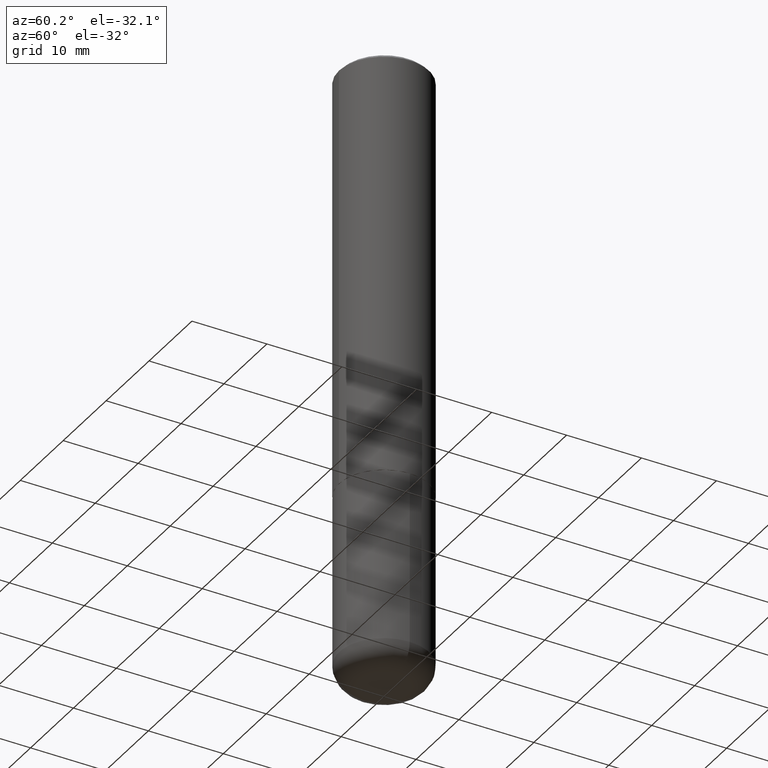
[diagram: clean part render]
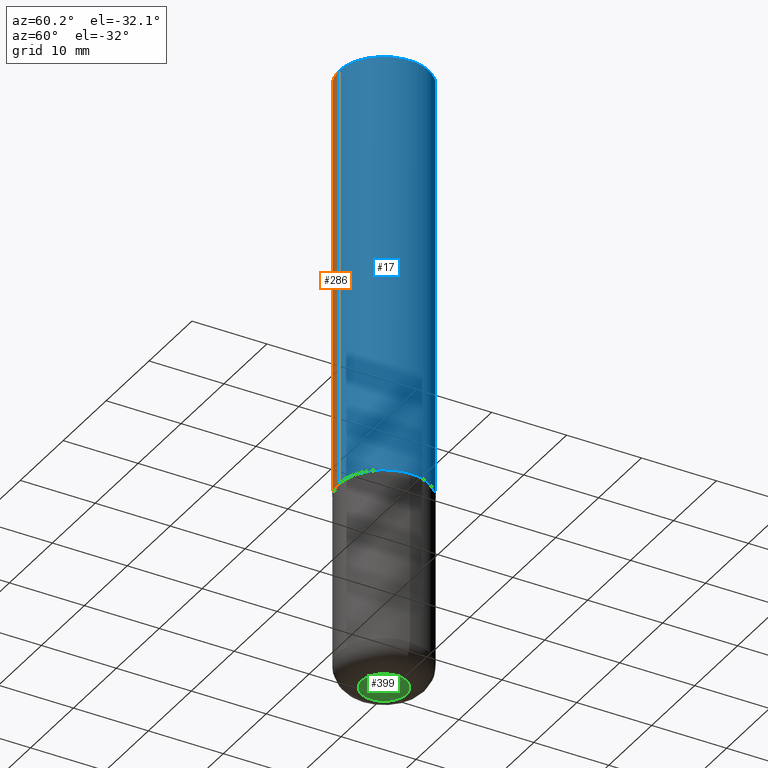
[diagram: same view with three faces highlighted in distinct colors, each labeled with its STEP entity id]
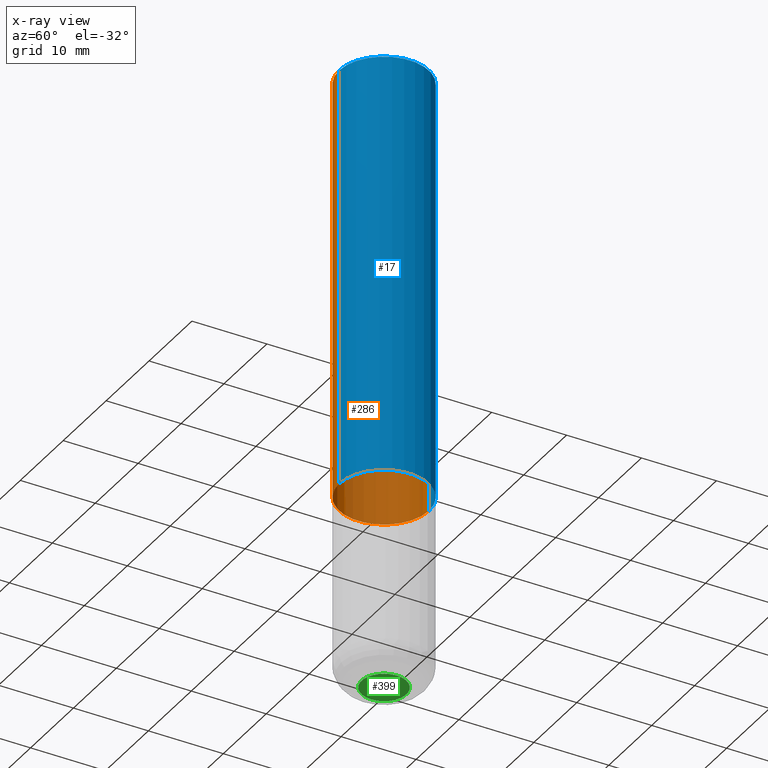
[diagram: x-ray of the same camera — body ghosted, the three highlighted faces saturated]
A machine part, auxiliary view with three faces highlighted in distinct colors.
The next image is the same camera in x-ray (body ghosted, the three faces saturated) — at least one of them is partly hidden behind the body in this view.
Their STEP definitions:

[orange] entity #286 — the highlighted cylindrical surface (partial cylindrical patch) has radius 5.9995 mm, axis along (-0, 0, 1).
#2 = CIRCLE ( 'NONE', #68, 0.2361999999999999933 ) ;
#9 = EDGE_CURVE ( 'NONE', #234, #231, #21, .T. ) ;
#16 = VERTEX_POINT ( 'NONE', #19 ) ;
#18 = CIRCLE ( 'NONE', #249, 0.2362000000000002709 ) ;
#19 = CARTESIAN_POINT ( 'NONE',  ( 1.678301941865385582E-15, 0.2361999999999924160, -2.243100000000000982 ) ) ;
#21 = LINE ( 'NONE', #251, #93 ) ;
#29 = CARTESIAN_POINT ( 'NONE',  ( -1.649375784469443080E-15, -0.2362000000000081257, -2.243099999999999206 ) ) ;
#32 = DIRECTION ( 'NONE',  ( -6.982962677686265922E-15, -1.000000000000000000, 3.494732472144603410E-15 ) ) ;
#68 = AXIS2_PLACEMENT_3D ( 'NONE', #288, #191, #418 ) ;
#74 = CARTESIAN_POINT ( 'NONE',  ( 0.000000000000000000, 0.000000000000000000, 0.000000000000000000 ) ) ;
#76 = EDGE_CURVE ( 'NONE', #16, #234, #18, .T. ) ;
#84 = DIRECTION ( 'NONE',  ( -6.982962677686265922E-15, -1.000000000000000000, 3.469747663417773058E-15 ) ) ;
#93 = VECTOR ( 'NONE', #188, 39.37007874015748143 ) ;
#100 = AXIS2_PLACEMENT_3D ( 'NONE', #74, #109, #32 ) ;
#103 = EDGE_LOOP ( 'NONE', ( #187, #311, #409, #272 ) ) ;
#106 = VECTOR ( 'NONE', #223, 39.37007874015748143 ) ;
#109 = DIRECTION ( 'NONE',  ( -2.443198551934710321E-29, 3.494732472144603410E-15, 1.000000000000000000 ) ) ;
#155 = EDGE_CURVE ( 'NONE', #295, #231, #2, .T. ) ;
#175 = FACE_OUTER_BOUND ( 'NONE', #103, .T. ) ;
#185 = EDGE_CURVE ( 'NONE', #16, #295, #193, .T. ) ;
#187 = ORIENTED_EDGE ( 'NONE', *, *, #185, .F. ) ;
#188 = DIRECTION ( 'NONE',  ( -2.443198551934710321E-29, 3.494732472144603016E-15, 1.000000000000000000 ) ) ;
#191 = DIRECTION ( 'NONE',  ( -2.443198551934710321E-29, 3.494732472144603410E-15, 1.000000000000000000 ) ) ;
#193 = LINE ( 'NONE', #351, #106 ) ;
#223 = DIRECTION ( 'NONE',  ( -2.443198551934710321E-29, 3.494732472144603016E-15, 1.000000000000000000 ) ) ;
#231 = VERTEX_POINT ( 'NONE', #319 ) ;
#233 = CYLINDRICAL_SURFACE ( 'NONE', #100, 0.2362000000000001321 ) ;
#234 = VERTEX_POINT ( 'NONE', #29 ) ;
#246 = CARTESIAN_POINT ( 'NONE',  ( 5.480338671844748839E-29, -7.839034408267561952E-15, -2.243100000000000094 ) ) ;
#249 = AXIS2_PLACEMENT_3D ( 'NONE', #246, #374, #84 ) ;
#251 = CARTESIAN_POINT ( 'NONE',  ( -1.649375784469496920E-15, -0.2362000000000001321, 8.254558099205557624E-16 ) ) ;
#272 = ORIENTED_EDGE ( 'NONE', *, *, #155, .F. ) ;
#286 = ADVANCED_FACE ( 'NONE', ( #175 ), #233, .T. ) ;
#288 = CARTESIAN_POINT ( 'NONE',  ( 4.886397103869442398E-31, -6.989464944289237832E-17, -0.02000000000000009062 ) ) ;
#295 = VERTEX_POINT ( 'NONE', #328 ) ;
#311 = ORIENTED_EDGE ( 'NONE', *, *, #76, .T. ) ;
#319 = CARTESIAN_POINT ( 'NONE',  ( -1.620449627073635079E-15, -0.2362000000000000766, -0.01999999999999926489 ) ) ;
#328 = CARTESIAN_POINT ( 'NONE',  ( 1.649375784469496525E-15, 0.2361999999999999378, -0.02000000000000091288 ) ) ;
#351 = CARTESIAN_POINT ( 'NONE',  ( 1.678301941865357380E-15, 0.2362000000000001321, -8.254558099205557624E-16 ) ) ;
#374 = DIRECTION ( 'NONE',  ( -2.443198551934710321E-29, 3.494732472144603410E-15, 1.000000000000000000 ) ) ;
#409 = ORIENTED_EDGE ( 'NONE', *, *, #9, .T. ) ;
#418 = DIRECTION ( 'NONE',  ( -6.982962677686265922E-15, -1.000000000000000000, 3.487819265831411744E-15 ) ) ;

[blue] entity #17 — the highlighted cylindrical surface (partial cylindrical patch) has radius 5.9995 mm, axis along (-0, 0, 1).
#9 = EDGE_CURVE ( 'NONE', #234, #231, #21, .T. ) ;
#10 = ORIENTED_EDGE ( 'NONE', *, *, #9, .F. ) ;
#16 = VERTEX_POINT ( 'NONE', #19 ) ;
#17 = ADVANCED_FACE ( 'NONE', ( #283 ), #310, .T. ) ;
#19 = CARTESIAN_POINT ( 'NONE',  ( 1.678301941865385582E-15, 0.2361999999999924160, -2.243100000000000982 ) ) ;
#21 = LINE ( 'NONE', #251, #93 ) ;
#22 = CIRCLE ( 'NONE', #356, 0.2361999999999999933 ) ;
#29 = CARTESIAN_POINT ( 'NONE',  ( -1.649375784469443080E-15, -0.2362000000000081257, -2.243099999999999206 ) ) ;
#54 = EDGE_CURVE ( 'NONE', #231, #295, #22, .T. ) ;
#80 = DIRECTION ( 'NONE',  ( -2.443198551934710321E-29, 3.494732472144603410E-15, 1.000000000000000000 ) ) ;
#93 = VECTOR ( 'NONE', #188, 39.37007874015748143 ) ;
#105 = ORIENTED_EDGE ( 'NONE', *, *, #54, .F. ) ;
#106 = VECTOR ( 'NONE', #223, 39.37007874015748143 ) ;
#107 = AXIS2_PLACEMENT_3D ( 'NONE', #202, #360, #389 ) ;
#122 = AXIS2_PLACEMENT_3D ( 'NONE', #153, #80, #377 ) ;
#153 = CARTESIAN_POINT ( 'NONE',  ( 0.000000000000000000, 0.000000000000000000, 0.000000000000000000 ) ) ;
#185 = EDGE_CURVE ( 'NONE', #16, #295, #193, .T. ) ;
#188 = DIRECTION ( 'NONE',  ( -2.443198551934710321E-29, 3.494732472144603016E-15, 1.000000000000000000 ) ) ;
#193 = LINE ( 'NONE', #351, #106 ) ;
#200 = ORIENTED_EDGE ( 'NONE', *, *, #185, .T. ) ;
#202 = CARTESIAN_POINT ( 'NONE',  ( 5.480338671844748839E-29, -7.839034408267561952E-15, -2.243100000000000094 ) ) ;
#223 = DIRECTION ( 'NONE',  ( -2.443198551934710321E-29, 3.494732472144603016E-15, 1.000000000000000000 ) ) ;
#231 = VERTEX_POINT ( 'NONE', #319 ) ;
#234 = VERTEX_POINT ( 'NONE', #29 ) ;
#241 = ORIENTED_EDGE ( 'NONE', *, *, #353, .T. ) ;
#243 = CARTESIAN_POINT ( 'NONE',  ( 4.886397103869442398E-31, -6.989464944289237832E-17, -0.02000000000000009062 ) ) ;
#251 = CARTESIAN_POINT ( 'NONE',  ( -1.649375784469496920E-15, -0.2362000000000001321, 8.254558099205557624E-16 ) ) ;
#274 = CIRCLE ( 'NONE', #107, 0.2362000000000002709 ) ;
#283 = FACE_OUTER_BOUND ( 'NONE', #344, .T. ) ;
#295 = VERTEX_POINT ( 'NONE', #328 ) ;
#310 = CYLINDRICAL_SURFACE ( 'NONE', #122, 0.2362000000000001321 ) ;
#319 = CARTESIAN_POINT ( 'NONE',  ( -1.620449627073635079E-15, -0.2362000000000000766, -0.01999999999999926489 ) ) ;
#328 = CARTESIAN_POINT ( 'NONE',  ( 1.649375784469496525E-15, 0.2361999999999999378, -0.02000000000000091288 ) ) ;
#344 = EDGE_LOOP ( 'NONE', ( #241, #200, #105, #10 ) ) ;
#351 = CARTESIAN_POINT ( 'NONE',  ( 1.678301941865357380E-15, 0.2362000000000001321, -8.254558099205557624E-16 ) ) ;
#353 = EDGE_CURVE ( 'NONE', #234, #16, #274, .T. ) ;
#356 = AXIS2_PLACEMENT_3D ( 'NONE', #243, #372, #407 ) ;
#360 = DIRECTION ( 'NONE',  ( -2.443198551934710321E-29, 3.494732472144603410E-15, 1.000000000000000000 ) ) ;
#372 = DIRECTION ( 'NONE',  ( -2.443198551934710321E-29, 3.494732472144603410E-15, 1.000000000000000000 ) ) ;
#377 = DIRECTION ( 'NONE',  ( -6.982962677686265922E-15, -1.000000000000000000, 3.494732472144603410E-15 ) ) ;
#389 = DIRECTION ( 'NONE',  ( -6.982962677686265922E-15, -1.000000000000000000, 3.469747663417773058E-15 ) ) ;
#407 = DIRECTION ( 'NONE',  ( -6.982962677686265922E-15, -1.000000000000000000, 3.487819265831411744E-15 ) ) ;

[green] entity #399 — the highlighted planar face has unit normal (0, -0, -1).
#15 = AXIS2_PLACEMENT_3D ( 'NONE', #317, #352, #321 ) ;
#31 = EDGE_CURVE ( 'NONE', #173, #405, #370, .T. ) ;
#39 = CARTESIAN_POINT ( 'NONE',  ( -0.1181000000000000383, -9.944215141480041685E-15, -3.267700000000000049 ) ) ;
#45 = CARTESIAN_POINT ( 'NONE',  ( 7.991058417971171713E-29, -1.140911357093774644E-14, -3.267700000000000049 ) ) ;
#98 = CARTESIAN_POINT ( 'NONE',  ( 0.1181000000000000105, -1.223380146317249628E-14, -3.267700000000000049 ) ) ;
#108 = PLANE ( 'NONE',  #210 ) ;
#118 = EDGE_CURVE ( 'NONE', #405, #173, #416, .T. ) ;
#171 = ORIENTED_EDGE ( 'NONE', *, *, #118, .F. ) ;
#173 = VERTEX_POINT ( 'NONE', #98 ) ;
#179 = DIRECTION ( 'NONE',  ( 1.000000000000000000, -6.982962677686272233E-15, 0.000000000000000000 ) ) ;
#204 = CARTESIAN_POINT ( 'NONE',  ( 7.991058417971171713E-29, -1.140911357093774644E-14, -3.267700000000000049 ) ) ;
#210 = AXIS2_PLACEMENT_3D ( 'NONE', #204, #230, #330 ) ;
#221 = EDGE_LOOP ( 'NONE', ( #366, #171 ) ) ;
#230 = DIRECTION ( 'NONE',  ( 2.438088387897960049E-29, -3.491481338843145188E-15, -1.000000000000000000 ) ) ;
#254 = AXIS2_PLACEMENT_3D ( 'NONE', #45, #277, #179 ) ;
#277 = DIRECTION ( 'NONE',  ( -2.445468806185136597E-29, 3.491481338843145583E-15, 1.000000000000000000 ) ) ;
#317 = CARTESIAN_POINT ( 'NONE',  ( 7.991058417971171713E-29, -1.140911357093774644E-14, -3.267700000000000049 ) ) ;
#321 = DIRECTION ( 'NONE',  ( 1.000000000000000000, -6.982962677686272233E-15, 0.000000000000000000 ) ) ;
#330 = DIRECTION ( 'NONE',  ( -1.000000000000000000, 6.982962677686265922E-15, -4.876176775795935793E-29 ) ) ;
#352 = DIRECTION ( 'NONE',  ( -2.445468806185136597E-29, 3.491481338843145583E-15, 1.000000000000000000 ) ) ;
#363 = FACE_OUTER_BOUND ( 'NONE', #221, .T. ) ;
#366 = ORIENTED_EDGE ( 'NONE', *, *, #31, .F. ) ;
#370 = CIRCLE ( 'NONE', #254, 0.1181000000000000105 ) ;
#399 = ADVANCED_FACE ( 'NONE', ( #363 ), #108, .T. ) ;
#405 = VERTEX_POINT ( 'NONE', #39 ) ;
#416 = CIRCLE ( 'NONE', #15, 0.1181000000000000105 ) ;